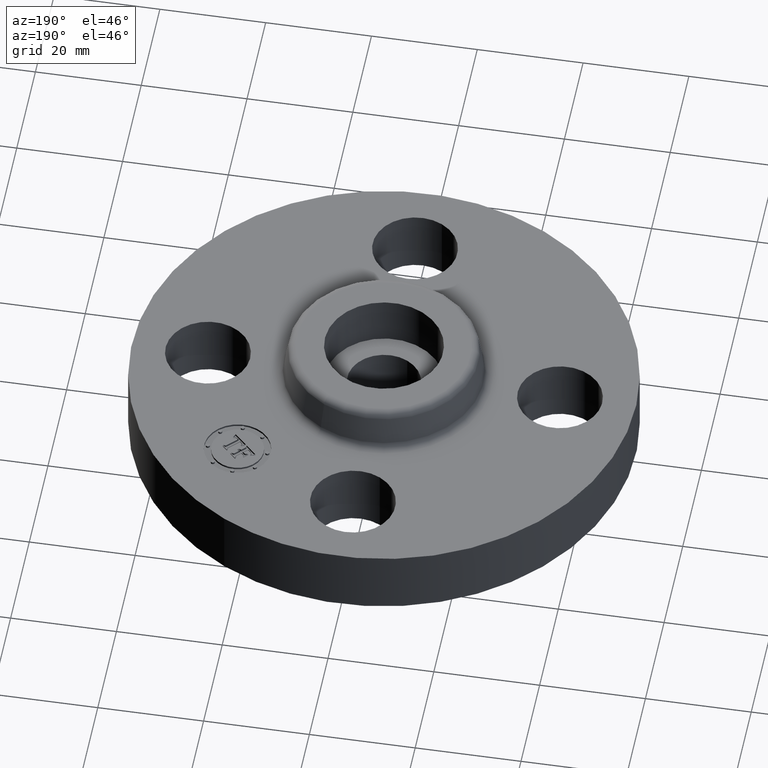
[diagram: clean part render]
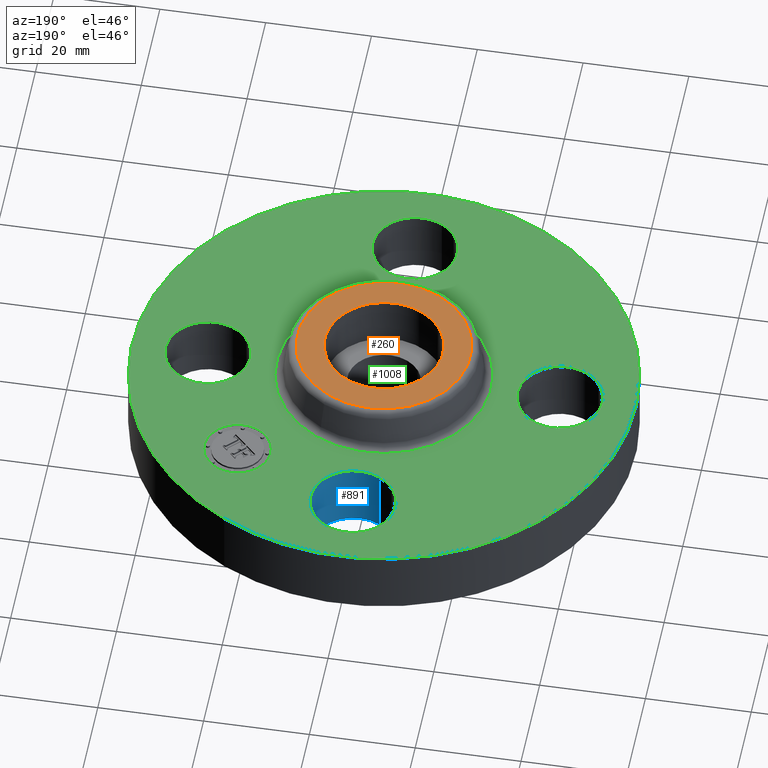
[diagram: same view with three faces highlighted in distinct colors, each labeled with its STEP entity id]
A machine part, auxiliary view with three faces highlighted in distinct colors.
Their STEP definitions:

[orange] entity #260 — the highlighted planar face has unit normal (0, 0, -1).
#92=AXIS2_PLACEMENT_3D('Circle Axis2P3D',#90,#91,$) ;
#236=AXIS2_PLACEMENT_3D('Plane Axis2P3D',#233,#234,#235) ;
#240=AXIS2_PLACEMENT_3D('Circle Axis2P3D',#238,#239,$) ;
#249=AXIS2_PLACEMENT_3D('Circle Axis2P3D',#247,#248,$) ;
#90=CARTESIAN_POINT('Axis2P3D Location',(0.,-6.99353086378E-017,0.809999999988)) ;
#94=CARTESIAN_POINT('Vertex',(-0.386136327247,0.210947236962,0.810000000003)) ;
#96=CARTESIAN_POINT('Vertex',(0.386136327247,-0.210947236964,0.810000000003)) ;
#129=CARTESIAN_POINT('Control Point',(0.386136327233,-0.210947236987,0.809999999988)) ;
#130=CARTESIAN_POINT('Control Point',(0.353000812733,-0.271601389433,0.809999999989)) ;
#131=CARTESIAN_POINT('Control Point',(0.307955883249,-0.325749398821,0.80999999999)) ;
#132=CARTESIAN_POINT('Control Point',(0.25269532249,-0.370262840225,0.809999999991)) ;
#133=CARTESIAN_POINT('Control Point',(0.127698083922,-0.435223603166,0.809999999992)) ;
#134=CARTESIAN_POINT('Control Point',(-0.0125819155225,-0.448097302225,0.809999999993)) ;
#135=CARTESIAN_POINT('Control Point',(-0.083132789037,-0.440497941251,0.809999999994)) ;
#136=CARTESIAN_POINT('Control Point',(-0.217453380045,-0.398045742217,0.809999999996)) ;
#137=CARTESIAN_POINT('Control Point',(-0.325749398821,-0.307955883249,0.809999999997)) ;
#138=CARTESIAN_POINT('Control Point',(-0.370262840225,-0.252695322491,0.809999999998)) ;
#139=CARTESIAN_POINT('Control Point',(-0.435223603166,-0.127698083922,0.809999999999)) ;
#140=CARTESIAN_POINT('Control Point',(-0.448097302225,0.0125819155224,0.810000000001)) ;
#141=CARTESIAN_POINT('Control Point',(-0.440497941251,0.0831327890369,0.810000000002)) ;
#142=CARTESIAN_POINT('Control Point',(-0.419271841734,0.150293084541,0.810000000002)) ;
#143=CARTESIAN_POINT('Control Point',(-0.386136327233,0.210947236987,0.810000000003)) ;
#233=CARTESIAN_POINT('Axis2P3D Location',(0.,0.644992658112,0.810000000003)) ;
#238=CARTESIAN_POINT('Axis2P3D Location',(4.36654387189E-011,-2.49617299709E-011,0.810000000003)) ;
#242=CARTESIAN_POINT('Vertex',(0.309225952512,0.566034309307,0.810000000003)) ;
#244=CARTESIAN_POINT('Vertex',(-0.309225952511,-0.566034309307,0.810000000003)) ;
#247=CARTESIAN_POINT('Axis2P3D Location',(-4.36654387189E-011,2.27470186169E-011,0.810000000003)) ;
#91=DIRECTION('Axis2P3D Direction',(0.,0.,-0.0393700787402)) ;
#234=DIRECTION('Axis2P3D Direction',(0.,0.,-0.0393700787402)) ;
#235=DIRECTION('Axis2P3D XDirection',(0.0393700787402,0.,0.)) ;
#239=DIRECTION('Axis2P3D Direction',(0.,0.,-0.0393700787402)) ;
#248=DIRECTION('Axis2P3D Direction',(0.,0.,-0.0393700787402)) ;
#253=ORIENTED_EDGE('',*,*,#246,.F.) ;
#254=ORIENTED_EDGE('',*,*,#251,.F.) ;
#257=ORIENTED_EDGE('',*,*,#98,.T.) ;
#258=ORIENTED_EDGE('',*,*,#144,.T.) ;
#259=FACE_BOUND('',#256,.T.) ;
#260=ADVANCED_FACE('PartBody',(#255,#259),#237,.F.) ;
#128=B_SPLINE_CURVE_WITH_KNOTS('',5,(#129,#130,#131,#132,#133,#134,#135,#136,#137,#138,#139,#140,#141,#142,#143),.UNSPECIFIED.,.F.,.U.,(6,3,3,3,6),(-17.5552197483,-8.77760987417,0.,8.77760987417,17.5552197483),.UNSPECIFIED.) ;
#93=CIRCLE('generated circle',#92,0.440000000002) ;
#241=CIRCLE('generated circle',#240,0.644992658085) ;
#250=CIRCLE('generated circle',#249,0.644992658085) ;
#98=EDGE_CURVE('',#95,#97,#93,.T.) ;
#144=EDGE_CURVE('',#97,#95,#128,.T.) ;
#246=EDGE_CURVE('',#243,#245,#241,.T.) ;
#251=EDGE_CURVE('',#245,#243,#250,.T.) ;
#252=EDGE_LOOP('',(#253,#254)) ;
#256=EDGE_LOOP('',(#257,#258)) ;
#255=FACE_OUTER_BOUND('',#252,.T.) ;
#237=PLANE('',#236) ;
#95=VERTEX_POINT('',#94) ;
#97=VERTEX_POINT('',#96) ;
#243=VERTEX_POINT('',#242) ;
#245=VERTEX_POINT('',#244) ;

[blue] entity #891 — the highlighted cylindrical surface (partial cylindrical patch) has radius 8.001 mm, axis along (-0, 0, -1).
#452=AXIS2_PLACEMENT_3D('Circle Axis2P3D',#450,#451,$) ;
#878=AXIS2_PLACEMENT_3D('Cylinder Axis2P3D',#875,#876,#877) ;
#882=AXIS2_PLACEMENT_3D('Circle Axis2P3D',#880,#881,$) ;
#445=CARTESIAN_POINT('Vertex',(-0.151019044675,1.03356149304,0.)) ;
#447=CARTESIAN_POINT('Vertex',(0.151019044675,1.58643850697,0.)) ;
#450=CARTESIAN_POINT('Axis2P3D Location',(-6.99353086378E-017,1.31000000001,0.)) ;
#830=CARTESIAN_POINT('Line Origine',(-0.151019044661,1.03356149301,0.250000000001)) ;
#834=CARTESIAN_POINT('Vertex',(-0.151019044659,1.03356149301,0.499999999987)) ;
#837=CARTESIAN_POINT('Line Origine',(0.151019044661,1.58643850701,0.250000000001)) ;
#841=CARTESIAN_POINT('Vertex',(0.151019044661,1.58643850701,0.499999999987)) ;
#875=CARTESIAN_POINT('Axis2P3D Location',(-2.40643096033E-016,1.31000000001,0.496062992128)) ;
#880=CARTESIAN_POINT('Axis2P3D Location',(-2.40643096033E-016,1.31000000001,0.499999999987)) ;
#451=DIRECTION('Axis2P3D Direction',(0.,0.,-0.0393700787402)) ;
#831=DIRECTION('Vector Direction',(0.,0.,-0.0393700787402)) ;
#838=DIRECTION('Vector Direction',(0.,0.,-0.0393700787402)) ;
#876=DIRECTION('Axis2P3D Direction',(-0.,0.,-0.0393700787402)) ;
#877=DIRECTION('Axis2P3D XDirection',(0.0188750212049,0.0345504945626,0.)) ;
#881=DIRECTION('Axis2P3D Direction',(-0.,0.,-0.0393700787402)) ;
#832=VECTOR('Line Direction',#831,0.0393700787402) ;
#839=VECTOR('Line Direction',#838,0.0393700787402) ;
#886=ORIENTED_EDGE('',*,*,#843,.F.) ;
#887=ORIENTED_EDGE('',*,*,#454,.T.) ;
#888=ORIENTED_EDGE('',*,*,#836,.T.) ;
#889=ORIENTED_EDGE('',*,*,#884,.F.) ;
#891=ADVANCED_FACE('PartBody',(#890),#879,.F.) ;
#453=CIRCLE('generated circle',#452,0.314999999981) ;
#883=CIRCLE('generated circle',#882,0.315000000001) ;
#879=CYLINDRICAL_SURFACE('generated cylinder',#878,0.315000000001) ;
#454=EDGE_CURVE('',#448,#446,#453,.T.) ;
#836=EDGE_CURVE('',#446,#835,#833,.F.) ;
#843=EDGE_CURVE('',#448,#842,#840,.F.) ;
#884=EDGE_CURVE('',#842,#835,#883,.T.) ;
#885=EDGE_LOOP('',(#886,#887,#888,#889)) ;
#890=FACE_OUTER_BOUND('',#885,.T.) ;
#833=LINE('Line',#830,#832) ;
#840=LINE('Line',#837,#839) ;
#446=VERTEX_POINT('',#445) ;
#448=VERTEX_POINT('',#447) ;
#835=VERTEX_POINT('',#834) ;
#842=VERTEX_POINT('',#841) ;

[green] entity #1008 — the highlighted planar face has unit normal (0, 0, -1).
#586=AXIS2_PLACEMENT_3D('Circle Axis2P3D',#584,#585,$) ;
#624=AXIS2_PLACEMENT_3D('Circle Axis2P3D',#622,#623,$) ;
#734=AXIS2_PLACEMENT_3D('Circle Axis2P3D',#732,#733,$) ;
#808=AXIS2_PLACEMENT_3D('Circle Axis2P3D',#806,#807,$) ;
#882=AXIS2_PLACEMENT_3D('Circle Axis2P3D',#880,#881,$) ;
#906=AXIS2_PLACEMENT_3D('Circle Axis2P3D',#904,#905,$) ;
#944=AXIS2_PLACEMENT_3D('Circle Axis2P3D',#942,#943,$) ;
#964=AXIS2_PLACEMENT_3D('Plane Axis2P3D',#961,#962,#963) ;
#992=AXIS2_PLACEMENT_3D('Circle Axis2P3D',#990,#991,$) ;
#1001=AXIS2_PLACEMENT_3D('Circle Axis2P3D',#999,#1000,$) ;
#538=CARTESIAN_POINT('Vertex',(-0.898922884888,-1.64546730355,0.500000000027)) ;
#542=CARTESIAN_POINT('Control Point',(-0.898922884888,-1.64546730355,0.500000000002)) ;
#543=CARTESIAN_POINT('Control Point',(-1.15739228452,-1.50426482699,0.500000000003)) ;
#544=CARTESIAN_POINT('Control Point',(-1.3881366427,-1.31231200248,0.500000000005)) ;
#545=CARTESIAN_POINT('Control Point',(-1.57782460323,-1.07682665834,0.500000000006)) ;
#546=CARTESIAN_POINT('Control Point',(-1.85464603622,-0.54416797126,0.500000000008)) ;
#547=CARTESIAN_POINT('Control Point',(-1.90950554926,0.0536161172824,0.500000000011)) ;
#548=CARTESIAN_POINT('Control Point',(-1.87712190874,0.354259044191,0.500000000012)) ;
#549=CARTESIAN_POINT('Control Point',(-1.69621765149,0.926647926328,0.500000000015)) ;
#550=CARTESIAN_POINT('Control Point',(-1.31231200248,1.3881366427,0.500000000017)) ;
#551=CARTESIAN_POINT('Control Point',(-1.07682665834,1.57782460323,0.500000000018)) ;
#552=CARTESIAN_POINT('Control Point',(-0.54416797126,1.85464603622,0.500000000021)) ;
#553=CARTESIAN_POINT('Control Point',(0.0536161172821,1.90950554926,0.500000000023)) ;
#554=CARTESIAN_POINT('Control Point',(0.354259044191,1.87712190874,0.500000000025)) ;
#555=CARTESIAN_POINT('Control Point',(0.64045348526,1.78666978012,0.500000000026)) ;
#556=CARTESIAN_POINT('Control Point',(0.898922884888,1.64546730355,0.500000000027)) ;
#557=CARTESIAN_POINT('Vertex',(0.898922884866,1.64546730357,0.500000000002)) ;
#584=CARTESIAN_POINT('Axis2P3D Location',(0.,0.,0.500000000027)) ;
#612=CARTESIAN_POINT('Vertex',(1.58643850697,-0.151019044665,0.500000000002)) ;
#619=CARTESIAN_POINT('Vertex',(1.03356149301,0.151019044661,0.499999999987)) ;
#622=CARTESIAN_POINT('Axis2P3D Location',(1.31000000001,0.,0.499999999987)) ;
#647=CARTESIAN_POINT('Control Point',(1.03356149301,0.151019044661,0.500000000002)) ;
#648=CARTESIAN_POINT('Control Point',(1.05728350908,0.194441903798,0.500000000001)) ;
#649=CARTESIAN_POINT('Control Point',(1.08953158359,0.233206955974,0.500000000001)) ;
#650=CARTESIAN_POINT('Control Point',(1.12909312141,0.265074533342,0.5)) ;
#651=CARTESIAN_POINT('Control Point',(1.21857978084,0.311580534084,0.499999999998)) ;
#652=CARTESIAN_POINT('Control Point',(1.31900750771,0.320796932274,0.499999999997)) ;
#653=CARTESIAN_POINT('Control Point',(1.36951551943,0.315356480668,0.499999999996)) ;
#654=CARTESIAN_POINT('Control Point',(1.46567685163,0.28496456545,0.499999999995)) ;
#655=CARTESIAN_POINT('Control Point',(1.54320695598,0.220468416416,0.499999999993)) ;
#656=CARTESIAN_POINT('Control Point',(1.57507453335,0.180906878601,0.499999999992)) ;
#657=CARTESIAN_POINT('Control Point',(1.62158053409,0.0914202191715,0.499999999991)) ;
#658=CARTESIAN_POINT('Control Point',(1.63079693228,-0.00900750770346,0.49999999999)) ;
#659=CARTESIAN_POINT('Control Point',(1.62535648068,-0.059515519424,0.499999999989)) ;
#660=CARTESIAN_POINT('Control Point',(1.61016052307,-0.107596185523,0.499999999988)) ;
#661=CARTESIAN_POINT('Control Point',(1.58643850701,-0.151019044661,0.499999999987)) ;
#686=CARTESIAN_POINT('Vertex',(0.151019044659,-1.03356149301,0.499999999987)) ;
#693=CARTESIAN_POINT('Vertex',(-0.151019044661,-1.58643850701,0.499999999987)) ;
#697=CARTESIAN_POINT('Control Point',(0.151019044659,-1.03356149301,0.499999999987)) ;
#698=CARTESIAN_POINT('Control Point',(0.194441903797,-1.05728350908,0.499999999988)) ;
#699=CARTESIAN_POINT('Control Point',(0.233206955973,-1.08953158359,0.499999999989)) ;
#700=CARTESIAN_POINT('Control Point',(0.265074533341,-1.12909312141,0.49999999999)) ;
#701=CARTESIAN_POINT('Control Point',(0.311580534084,-1.21857978084,0.499999999991)) ;
#702=CARTESIAN_POINT('Control Point',(0.320796932275,-1.31900750771,0.499999999992)) ;
#703=CARTESIAN_POINT('Control Point',(0.315356480668,-1.36951551943,0.499999999993)) ;
#704=CARTESIAN_POINT('Control Point',(0.284964565451,-1.46567685163,0.499999999995)) ;
#705=CARTESIAN_POINT('Control Point',(0.220468416417,-1.54320695598,0.499999999996)) ;
#706=CARTESIAN_POINT('Control Point',(0.180906878602,-1.57507453335,0.499999999997)) ;
#707=CARTESIAN_POINT('Control Point',(0.0914202191719,-1.62158053409,0.499999999998)) ;
#708=CARTESIAN_POINT('Control Point',(-0.0090075077032,-1.63079693228,0.5)) ;
#709=CARTESIAN_POINT('Control Point',(-0.0595155194239,-1.62535648068,0.500000000001)) ;
#710=CARTESIAN_POINT('Control Point',(-0.107596185523,-1.61016052307,0.500000000001)) ;
#711=CARTESIAN_POINT('Control Point',(-0.151019044661,-1.58643850701,0.500000000002)) ;
#732=CARTESIAN_POINT('Axis2P3D Location',(-1.99526869207E-016,-1.31000000001,0.499999999987)) ;
#760=CARTESIAN_POINT('Vertex',(-1.03356149301,-0.151019044659,0.499999999987)) ;
#767=CARTESIAN_POINT('Vertex',(-1.58643850701,0.151019044661,0.499999999987)) ;
#771=CARTESIAN_POINT('Control Point',(-1.03356149301,-0.151019044659,0.499999999987)) ;
#772=CARTESIAN_POINT('Control Point',(-1.05728350908,-0.194441903797,0.499999999988)) ;
#773=CARTESIAN_POINT('Control Point',(-1.08953158359,-0.233206955973,0.499999999989)) ;
#774=CARTESIAN_POINT('Control Point',(-1.12909312141,-0.265074533341,0.49999999999)) ;
#775=CARTESIAN_POINT('Control Point',(-1.21857978084,-0.311580534084,0.499999999991)) ;
#776=CARTESIAN_POINT('Control Point',(-1.31900750771,-0.320796932275,0.499999999992)) ;
#777=CARTESIAN_POINT('Control Point',(-1.36951551943,-0.315356480668,0.499999999993)) ;
#778=CARTESIAN_POINT('Control Point',(-1.46567685163,-0.284964565451,0.499999999995)) ;
#779=CARTESIAN_POINT('Control Point',(-1.54320695598,-0.220468416417,0.499999999996)) ;
#780=CARTESIAN_POINT('Control Point',(-1.57507453335,-0.180906878602,0.499999999997)) ;
#781=CARTESIAN_POINT('Control Point',(-1.62158053409,-0.0914202191719,0.499999999998)) ;
#782=CARTESIAN_POINT('Control Point',(-1.63079693228,0.0090075077032,0.5)) ;
#783=CARTESIAN_POINT('Control Point',(-1.62535648068,0.0595155194239,0.500000000001)) ;
#784=CARTESIAN_POINT('Control Point',(-1.61016052307,0.107596185523,0.500000000001)) ;
#785=CARTESIAN_POINT('Control Point',(-1.58643850701,0.151019044661,0.500000000002)) ;
#806=CARTESIAN_POINT('Axis2P3D Location',(-1.31000000001,-1.60428730689E-016,0.499999999987)) ;
#834=CARTESIAN_POINT('Vertex',(-0.151019044659,1.03356149301,0.499999999987)) ;
#841=CARTESIAN_POINT('Vertex',(0.151019044661,1.58643850701,0.499999999987)) ;
#845=CARTESIAN_POINT('Control Point',(-0.151019044659,1.03356149301,0.499999999987)) ;
#846=CARTESIAN_POINT('Control Point',(-0.194441903797,1.05728350908,0.499999999988)) ;
#847=CARTESIAN_POINT('Control Point',(-0.233206955973,1.08953158359,0.499999999989)) ;
#848=CARTESIAN_POINT('Control Point',(-0.265074533341,1.12909312141,0.49999999999)) ;
#849=CARTESIAN_POINT('Control Point',(-0.311580534084,1.21857978084,0.499999999991)) ;
#850=CARTESIAN_POINT('Control Point',(-0.320796932275,1.31900750771,0.499999999992)) ;
#851=CARTESIAN_POINT('Control Point',(-0.315356480668,1.36951551943,0.499999999993)) ;
#852=CARTESIAN_POINT('Control Point',(-0.284964565451,1.46567685163,0.499999999995)) ;
#853=CARTESIAN_POINT('Control Point',(-0.220468416417,1.54320695598,0.499999999996)) ;
#854=CARTESIAN_POINT('Control Point',(-0.180906878602,1.57507453335,0.499999999997)) ;
#855=CARTESIAN_POINT('Control Point',(-0.0914202191719,1.62158053409,0.499999999998)) ;
#856=CARTESIAN_POINT('Control Point',(0.0090075077032,1.63079693228,0.5)) ;
#857=CARTESIAN_POINT('Control Point',(0.0595155194239,1.62535648068,0.500000000001)) ;
#858=CARTESIAN_POINT('Control Point',(0.107596185523,1.61016052307,0.500000000001)) ;
#859=CARTESIAN_POINT('Control Point',(0.151019044661,1.58643850701,0.500000000002)) ;
#880=CARTESIAN_POINT('Axis2P3D Location',(-2.40643096033E-016,1.31000000001,0.499999999987)) ;
#904=CARTESIAN_POINT('Axis2P3D Location',(0.,0.,0.500000000002)) ;
#908=CARTESIAN_POINT('Vertex',(0.383706301512,0.702369673661,0.500000000002)) ;
#910=CARTESIAN_POINT('Vertex',(-0.383706301512,-0.702369673661,0.500000000002)) ;
#942=CARTESIAN_POINT('Axis2P3D Location',(0.,0.,0.500000000002)) ;
#961=CARTESIAN_POINT('Axis2P3D Location',(0.,1.87500000001,0.500000000002)) ;
#990=CARTESIAN_POINT('Axis2P3D Location',(0.926309883353,0.926309883363,0.500000000002)) ;
#994=CARTESIAN_POINT('Vertex',(0.751300955001,1.10131881171,0.500000000002)) ;
#996=CARTESIAN_POINT('Vertex',(1.1013188117,0.751300955011,0.500000000002)) ;
#999=CARTESIAN_POINT('Axis2P3D Location',(0.926309883353,0.926309883363,0.500000000002)) ;
#585=DIRECTION('Axis2P3D Direction',(0.,0.,-0.0393700787402)) ;
#623=DIRECTION('Axis2P3D Direction',(0.,-0.,-0.0393700787402)) ;
#733=DIRECTION('Axis2P3D Direction',(0.,0.,-0.0393700787402)) ;
#807=DIRECTION('Axis2P3D Direction',(0.,-0.,-0.0393700787402)) ;
#881=DIRECTION('Axis2P3D Direction',(-0.,0.,-0.0393700787402)) ;
#905=DIRECTION('Axis2P3D Direction',(-0.,0.,-0.0393700787402)) ;
#943=DIRECTION('Axis2P3D Direction',(-0.,0.,-0.0393700787402)) ;
#962=DIRECTION('Axis2P3D Direction',(0.,0.,-0.0393700787402)) ;
#963=DIRECTION('Axis2P3D XDirection',(0.0393700787402,0.,0.)) ;
#991=DIRECTION('Axis2P3D Direction',(0.,0.,-0.0393700787402)) ;
#1000=DIRECTION('Axis2P3D Direction',(0.,0.,-0.0393700787402)) ;
#967=ORIENTED_EDGE('',*,*,#588,.F.) ;
#968=ORIENTED_EDGE('',*,*,#559,.F.) ;
#971=ORIENTED_EDGE('',*,*,#662,.T.) ;
#972=ORIENTED_EDGE('',*,*,#626,.T.) ;
#975=ORIENTED_EDGE('',*,*,#946,.T.) ;
#976=ORIENTED_EDGE('',*,*,#912,.T.) ;
#979=ORIENTED_EDGE('',*,*,#736,.T.) ;
#980=ORIENTED_EDGE('',*,*,#712,.T.) ;
#983=ORIENTED_EDGE('',*,*,#810,.T.) ;
#984=ORIENTED_EDGE('',*,*,#786,.T.) ;
#987=ORIENTED_EDGE('',*,*,#884,.T.) ;
#988=ORIENTED_EDGE('',*,*,#860,.T.) ;
#1005=ORIENTED_EDGE('',*,*,#998,.T.) ;
#1006=ORIENTED_EDGE('',*,*,#1003,.T.) ;
#973=FACE_BOUND('',#970,.T.) ;
#977=FACE_BOUND('',#974,.T.) ;
#981=FACE_BOUND('',#978,.T.) ;
#985=FACE_BOUND('',#982,.T.) ;
#989=FACE_BOUND('',#986,.T.) ;
#1007=FACE_BOUND('',#1004,.T.) ;
#1008=ADVANCED_FACE('PartBody',(#969,#973,#977,#981,#985,#989,#1007),#965,.F.) ;
#541=B_SPLINE_CURVE_WITH_KNOTS('',5,(#542,#543,#544,#545,#546,#547,#548,#549,#550,#551,#552,#553,#554,#555,#556),.UNSPECIFIED.,.F.,.U.,(6,3,3,3,6),(-74.809175064,-37.404587532,0.,37.404587532,74.809175064),.UNSPECIFIED.) ;
#646=B_SPLINE_CURVE_WITH_KNOTS('',5,(#647,#648,#649,#650,#651,#652,#653,#654,#655,#656,#657,#658,#659,#660,#661),.UNSPECIFIED.,.F.,.U.,(6,3,3,3,6),(-12.5679414107,-6.28397070536,8.881784197E-016,6.28397070536,12.5679414107),.UNSPECIFIED.) ;
#696=B_SPLINE_CURVE_WITH_KNOTS('',5,(#697,#698,#699,#700,#701,#702,#703,#704,#705,#706,#707,#708,#709,#710,#711),.UNSPECIFIED.,.F.,.U.,(6,3,3,3,6),(-12.5679414107,-6.28397070537,0.,6.28397070537,12.5679414107),.UNSPECIFIED.) ;
#770=B_SPLINE_CURVE_WITH_KNOTS('',5,(#771,#772,#773,#774,#775,#776,#777,#778,#779,#780,#781,#782,#783,#784,#785),.UNSPECIFIED.,.F.,.U.,(6,3,3,3,6),(-12.5679414107,-6.28397070537,0.,6.28397070537,12.5679414107),.UNSPECIFIED.) ;
#844=B_SPLINE_CURVE_WITH_KNOTS('',5,(#845,#846,#847,#848,#849,#850,#851,#852,#853,#854,#855,#856,#857,#858,#859),.UNSPECIFIED.,.F.,.U.,(6,3,3,3,6),(-12.5679414107,-6.28397070537,0.,6.28397070537,12.5679414107),.UNSPECIFIED.) ;
#587=CIRCLE('generated circle',#586,1.87500000001) ;
#625=CIRCLE('generated circle',#624,0.315000000001) ;
#735=CIRCLE('generated circle',#734,0.315000000001) ;
#809=CIRCLE('generated circle',#808,0.315000000001) ;
#883=CIRCLE('generated circle',#882,0.315000000001) ;
#907=CIRCLE('generated circle',#906,0.800345977874) ;
#945=CIRCLE('generated circle',#944,0.800345977874) ;
#993=CIRCLE('generated circle',#992,0.247500000012) ;
#1002=CIRCLE('generated circle',#1001,0.247500000012) ;
#559=EDGE_CURVE('',#539,#558,#541,.T.) ;
#588=EDGE_CURVE('',#558,#539,#587,.T.) ;
#626=EDGE_CURVE('',#613,#620,#625,.T.) ;
#662=EDGE_CURVE('',#620,#613,#646,.T.) ;
#712=EDGE_CURVE('',#687,#694,#696,.T.) ;
#736=EDGE_CURVE('',#694,#687,#735,.T.) ;
#786=EDGE_CURVE('',#761,#768,#770,.T.) ;
#810=EDGE_CURVE('',#768,#761,#809,.T.) ;
#860=EDGE_CURVE('',#835,#842,#844,.T.) ;
#884=EDGE_CURVE('',#842,#835,#883,.T.) ;
#912=EDGE_CURVE('',#909,#911,#907,.T.) ;
#946=EDGE_CURVE('',#911,#909,#945,.T.) ;
#998=EDGE_CURVE('',#995,#997,#993,.T.) ;
#1003=EDGE_CURVE('',#997,#995,#1002,.T.) ;
#966=EDGE_LOOP('',(#967,#968)) ;
#970=EDGE_LOOP('',(#971,#972)) ;
#974=EDGE_LOOP('',(#975,#976)) ;
#978=EDGE_LOOP('',(#979,#980)) ;
#982=EDGE_LOOP('',(#983,#984)) ;
#986=EDGE_LOOP('',(#987,#988)) ;
#1004=EDGE_LOOP('',(#1005,#1006)) ;
#969=FACE_OUTER_BOUND('',#966,.T.) ;
#965=PLANE('',#964) ;
#539=VERTEX_POINT('',#538) ;
#558=VERTEX_POINT('',#557) ;
#613=VERTEX_POINT('',#612) ;
#620=VERTEX_POINT('',#619) ;
#687=VERTEX_POINT('',#686) ;
#694=VERTEX_POINT('',#693) ;
#761=VERTEX_POINT('',#760) ;
#768=VERTEX_POINT('',#767) ;
#835=VERTEX_POINT('',#834) ;
#842=VERTEX_POINT('',#841) ;
#909=VERTEX_POINT('',#908) ;
#911=VERTEX_POINT('',#910) ;
#995=VERTEX_POINT('',#994) ;
#997=VERTEX_POINT('',#996) ;